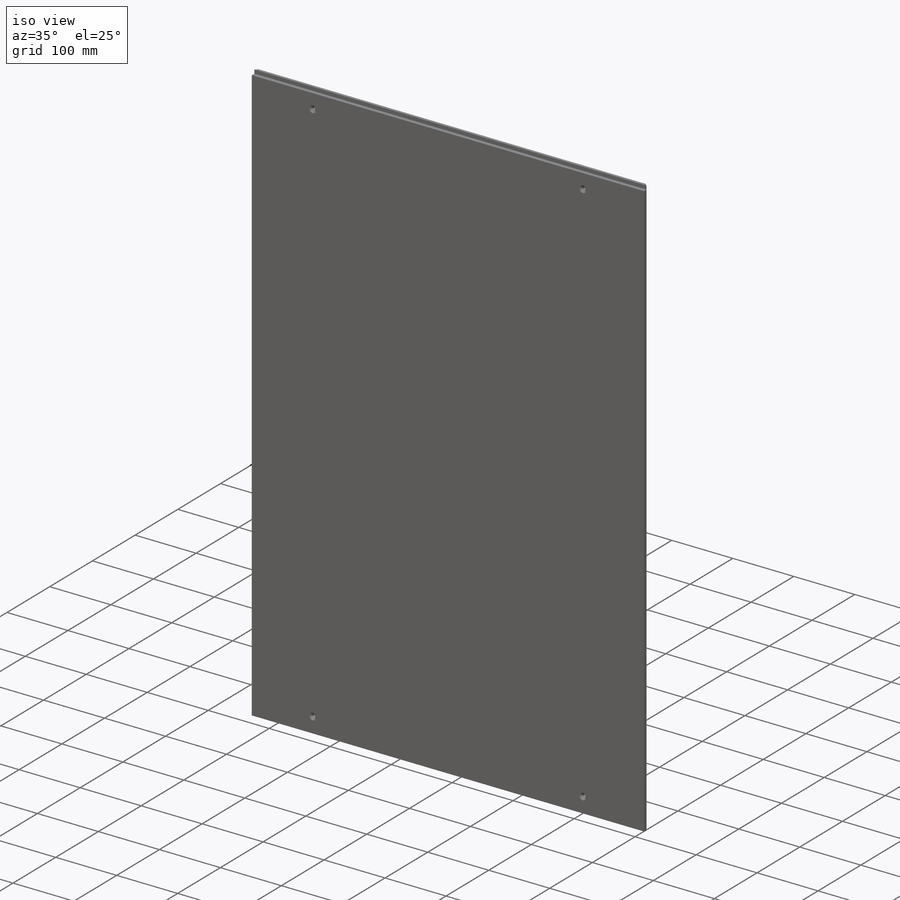
[diagram: iso view]
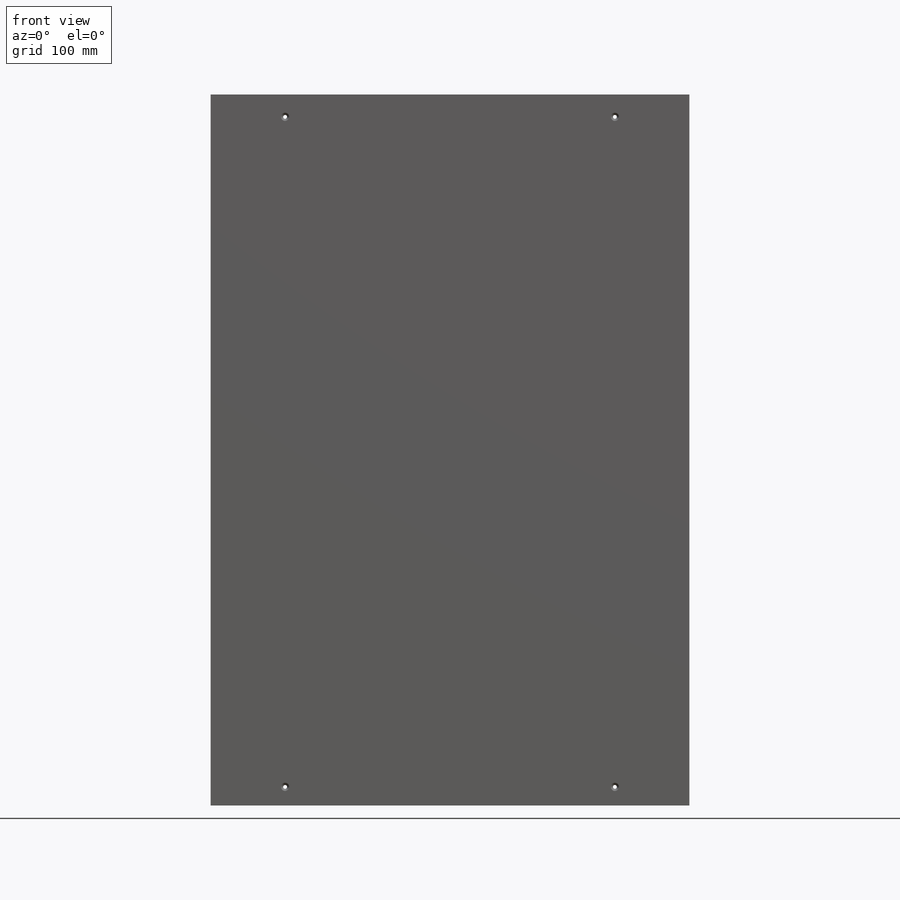
[diagram: front view]
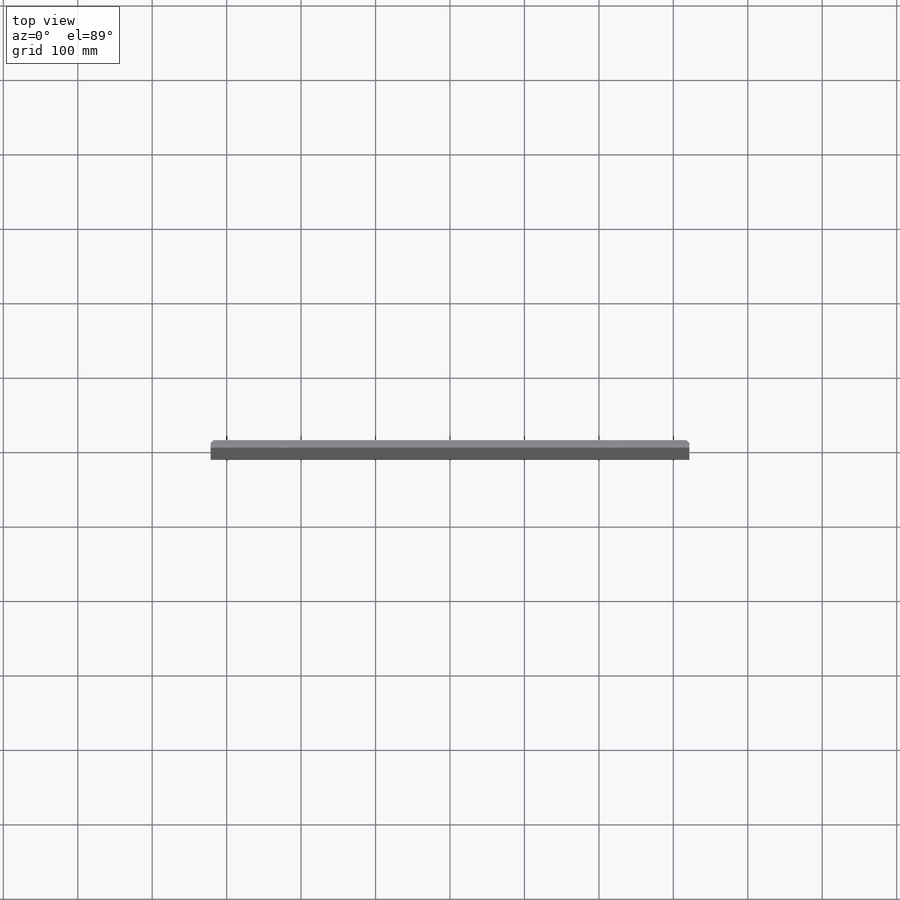
[diagram: top view]
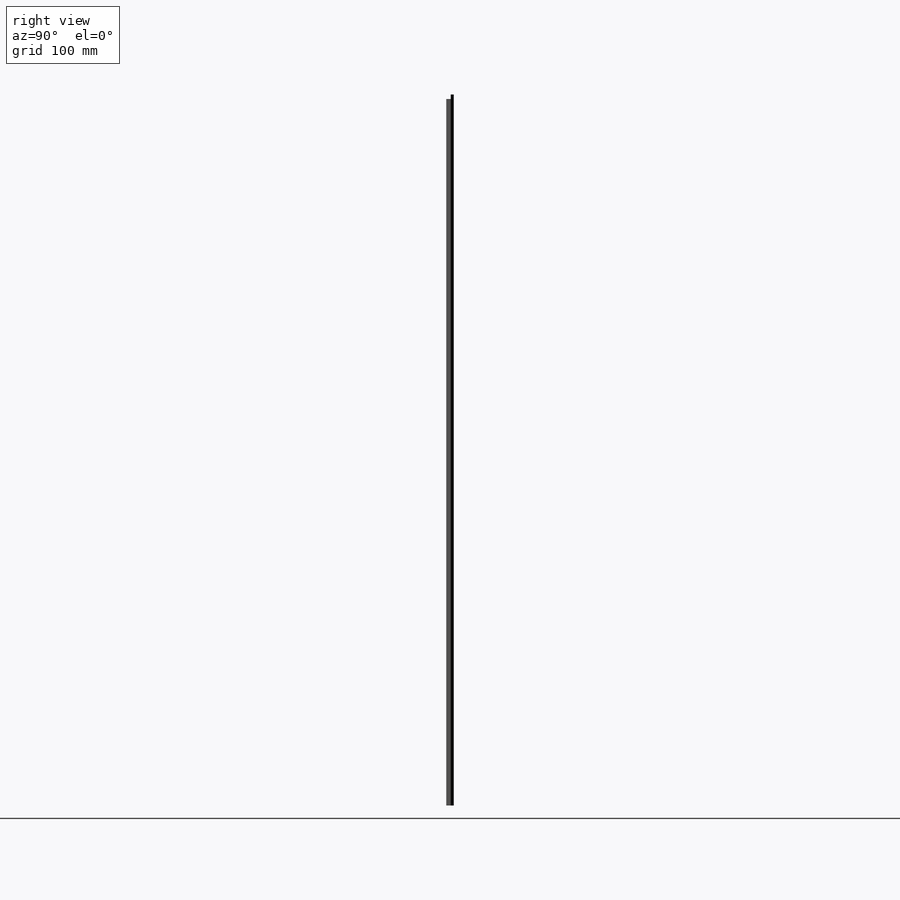
[diagram: right view]
SOLIDWORKS PART (.sldprt)
format: sldprt  version: not decoded by parser v0  size: 1,457,664 bytes
history: native  units: mm
features: sketch x4, cut_extrude x3, chamfer x2, material x1, extrude x1 + 1 further entry (+12 scaffold rows collapsed)
feature tree (24):
  scaffold x12  (default folders/planes/origin — collapsed)
  material  "Material <not specified>"
  "Design Table"
  sketch  "Sketch1"  dims[ALTURA=655.0mm LARGURA=342.0mm]
  extrude  "Boss-Extrude1"  Depth=10mm
  sketch  "Sketch2"  dims[D1=6.0mm D2=6.0mm]
  cut_extrude  "Cut-Extrude1"  [1 undecoded]
  chamfer  "Chamfer1"  Distance=4mm Angle=45deg
  sketch  "Sketch3"  dims[D1=5.2mm D2=100.0mm D3=25.0mm D4=100.0mm D5=30.0mm]
  cut_extrude  "Cut-Extrude2"  [1 undecoded]
  chamfer  "Chamfer2"  Distance=2.9mm Angle=45deg
  sketch  "Sketch4"  dims[D6=12.0mm D1=30.0mm D2=20.0mm D3=20.0mm D4=20.0mm D5=20.0mm]
  cut_extrude  "Cut-Extrude3"  Depth=4mm
decode coverage: 8 of 10 modeling features carry decoded parameters; 1 rows unclassified (native names shown)
note: 2 parameter values undecoded
note: suppression state not decoded; provenance and decode notes live in map.json
